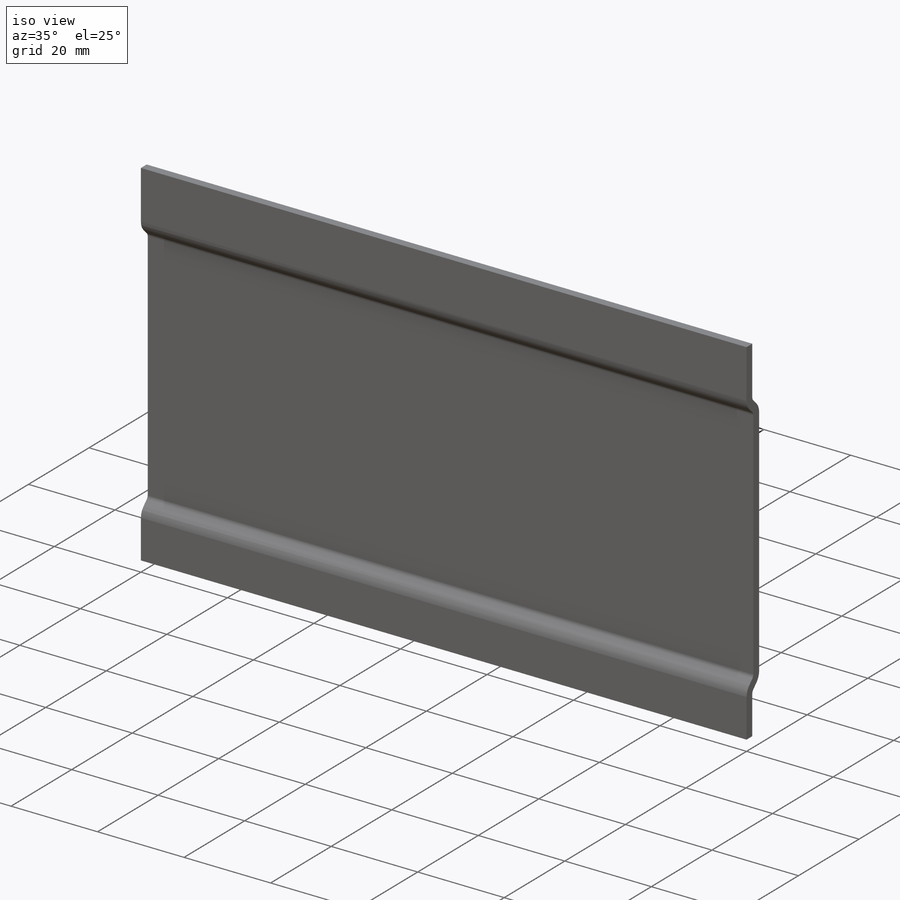
[diagram: iso view]
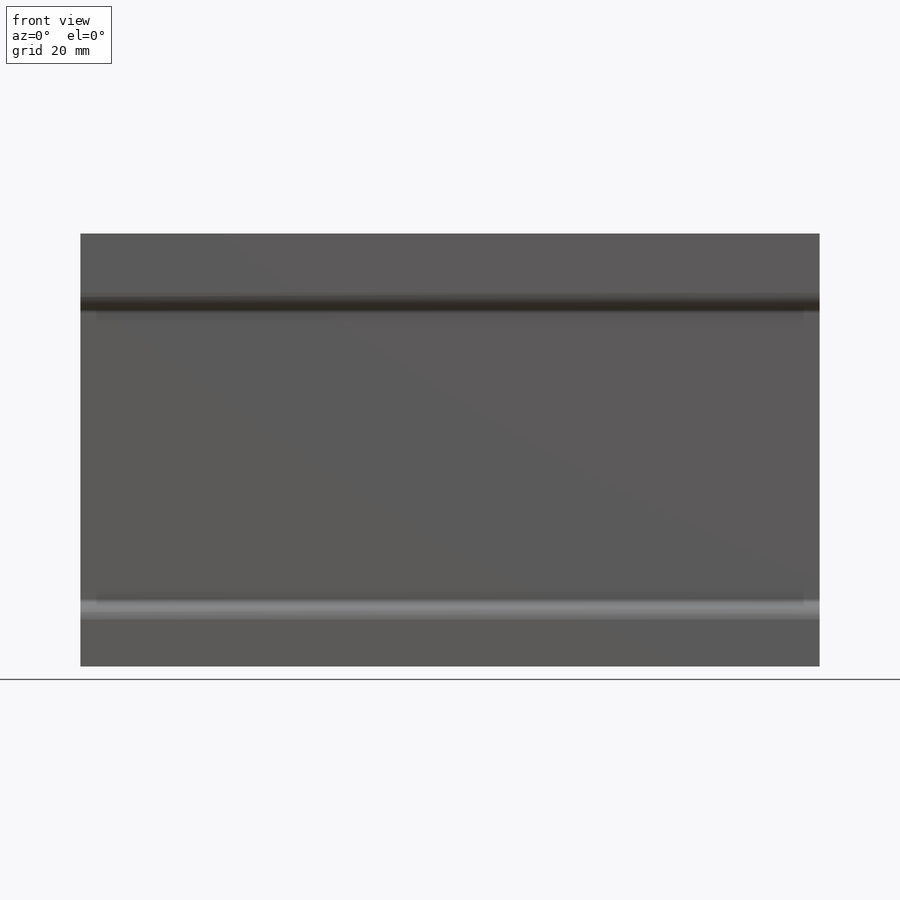
[diagram: front view]
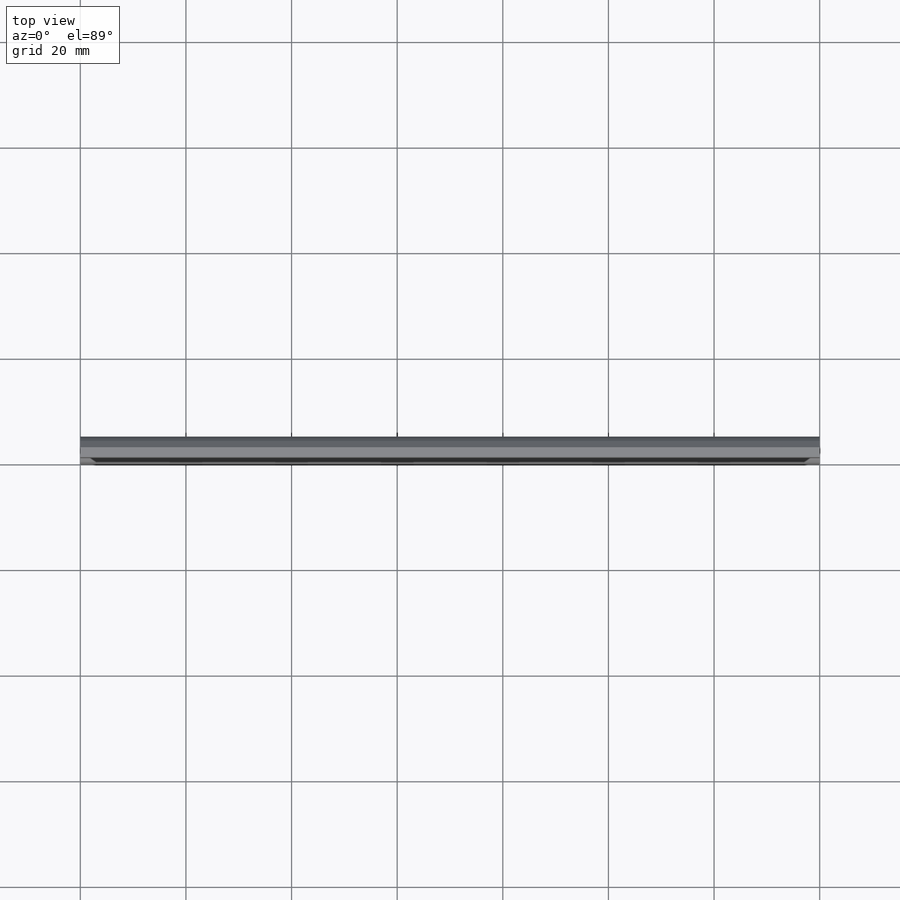
[diagram: top view]
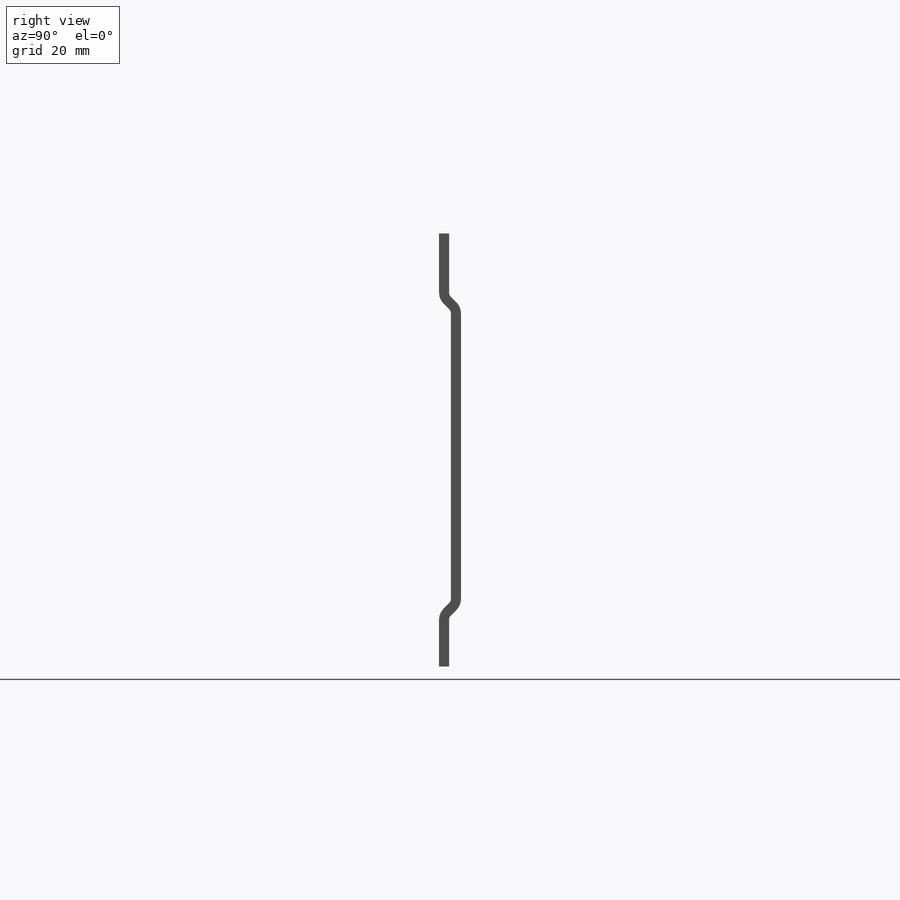
[diagram: right view]
SOLIDWORKS PART (.sldprt)
format: sldprt  version: not decoded by parser v0  size: 302,080 bytes
history: native  units: mm
features: sketch x10, sheet_metal_op x6, cut_extrude x2, material x1 + 8 further entries (+13 scaffold rows collapsed; 4 parser-record rows omitted)
feature tree (44):
  scaffold x13  (default folders/planes/origin — collapsed)
  material  "Material <not specified>"
  sketch  "Sketch1"  dims[c1.D1=140.0mm c1.D2=82.0mm c2.D1=1.9mm c2.D2=0.5 c2.D3=0.0mm c2.D6=500.0mm]
  sheet_metal_op  "Base-Flange1"
  sketch  "Sketch20"  dims[D1=12.0mm D2=12.0mm]
  parser-record x4  (decoder bookkeeping rows leaked as tree rows — omitted from the tree; the rows remain in map.json)
  sheet_metal_op  "JogBend2"
  sketch  "Sketch21"  dims[D1=12.0mm Jog2=0.0]
  sheet_metal_op  "JogBend3"
  sheet_metal_op  "JogBend4"
  sketch  "Sketch23"  dims[D1=5.0mm]
  cut_extrude  "Cut-Extrude2"  Depth=10mm
  sketch  "Bend-Lines1"
  sketch  "Bounding-Box1"
  sheet_metal_op  "Sheet-Metal1"
  "Flat-Pattern1"
  sketch  "Bend-Lines2"
  sketch  "Bounding-Box2"
  "Flatten-<JogBend2>1"
  "Flatten-<JogBend3>1"
  "Flatten-<JogBend4>1"
  cut_extrude  "Sheet-Metal6"  Depth=1mm
  sheet_metal_op  "Flat-Pattern1"
  sketch  "Bend-Lines2"
  sketch  "Bounding-Box2"
  "Flatten-<JogBend1>1"
  "Flatten-<JogBend2>1"
  "Flatten-<JogBend3>1"
  "Flatten-<JogBend4>1"
decode coverage: 6 of 18 modeling features carry decoded parameters; 8 rows unclassified (native names shown)
note: suppression state not decoded; provenance and decode notes live in map.json
